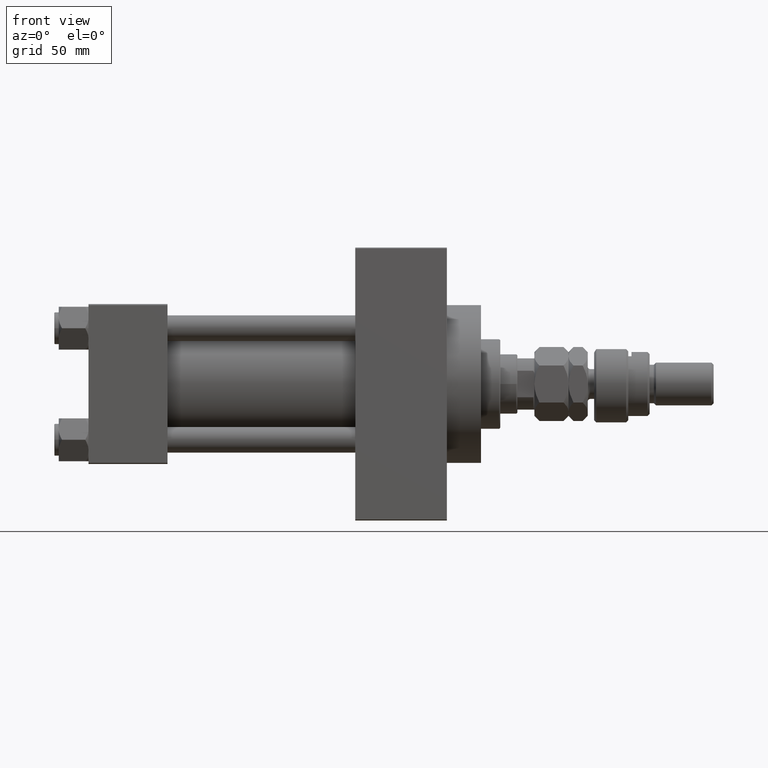
[diagram: clean part render]
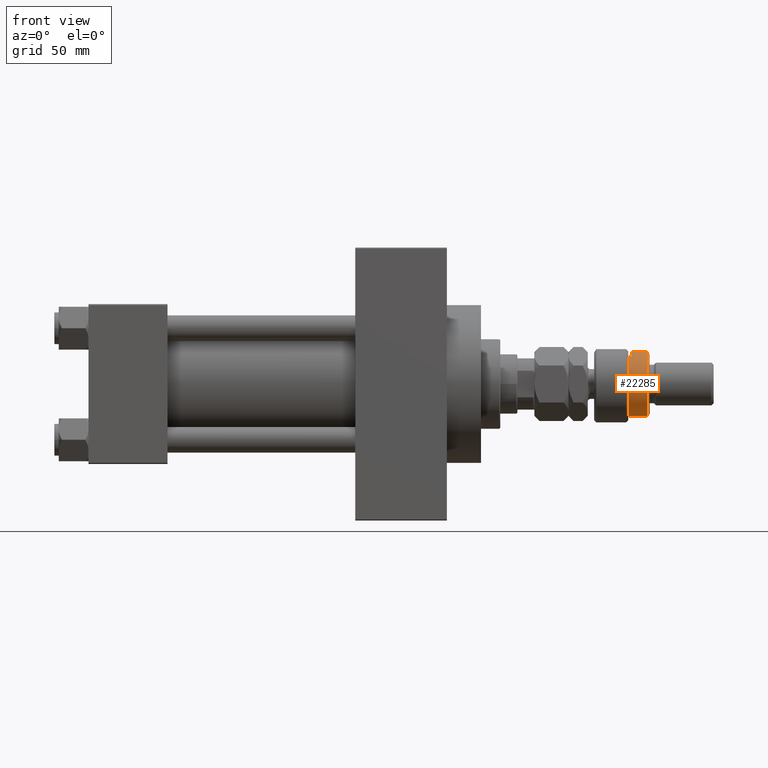
[diagram: same view with one face highlighted and labeled with its STEP entity id]
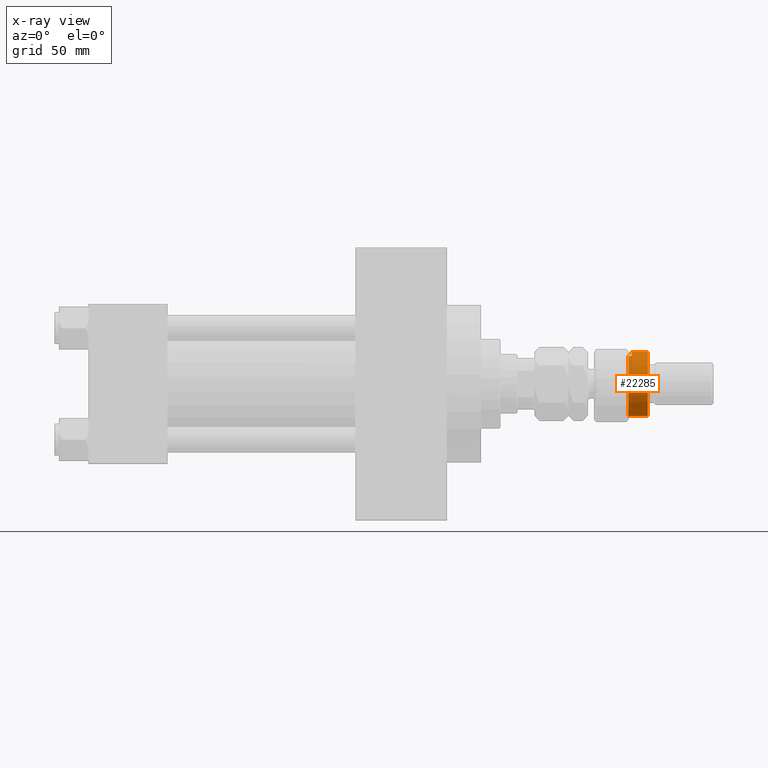
[diagram: x-ray of the same camera — body ghosted, the highlighted face saturated]
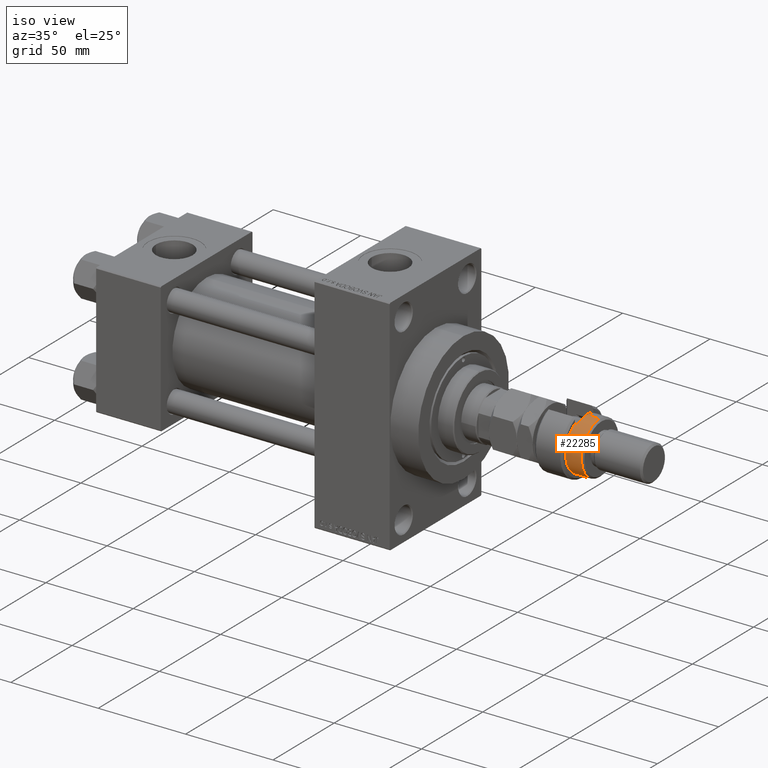
[diagram: same view with one face highlighted and labeled with its STEP entity id]
A machine part, front view. The second image highlights one B-rep face of the part: STEP entity #22285.
The next image is the same camera in x-ray: the body ghosted, the highlighted face saturated — about 0% of this face is hidden behind the body in this view.
A second angle (iso view) of the same face is appended — the face is thin or edge-on in the first view.
In plain terms, the highlighted cylindrical surface (edge-blend (fillet) strip) has radius 15 mm, axis along (-1, -0, 0).
Its self-contained STEP definition (entity closure, byte-faithful):
#2466 = DIRECTION ( 'NONE',  ( -0.000000000000000000, -0.000000000000000000, -1.000000000000000000 ) ) ;
#2936 = CIRCLE ( 'NONE', #9396, 15.00000000000000000 ) ;
#2995 = VECTOR ( 'NONE', #3976, 1000.000000000000000 ) ;
#3128 = EDGE_CURVE ( 'NONE', #3950, #18785, #36921, .T. ) ;
#3442 = CARTESIAN_POINT ( 'NONE',  ( -15.00000000000000000, 0.000000000000000000, 24.99999999999997868 ) ) ;
#3537 = ORIENTED_EDGE ( 'NONE', *, *, #24087, .T. ) ;
#3584 = CIRCLE ( 'NONE', #10868, 15.00000000000000000 ) ;
#3950 = VERTEX_POINT ( 'NONE', #13301 ) ;
#3976 = DIRECTION ( 'NONE',  ( -0.000000000000000000, -0.000000000000000000, -1.000000000000000000 ) ) ;
#4215 = CARTESIAN_POINT ( 'NONE',  ( 15.00000000000000000, 1.836970198721029589E-15, 26.00000000000000355 ) ) ;
#4494 = AXIS2_PLACEMENT_3D ( 'NONE', #26440, #41947, #5664 ) ;
#5664 = DIRECTION ( 'NONE',  ( -1.000000000000000000, 0.000000000000000000, 0.000000000000000000 ) ) ;
#6603 = CARTESIAN_POINT ( 'NONE',  ( -12.99038105676658006, -7.500000000000000000, 16.00000000000000000 ) ) ;
#7388 = VERTEX_POINT ( 'NONE', #17633 ) ;
#7809 = VERTEX_POINT ( 'NONE', #19819 ) ;
#8707 = EDGE_CURVE ( 'NONE', #7809, #7388, #11343, .T. ) ;
#9396 = AXIS2_PLACEMENT_3D ( 'NONE', #14855, #29601, #38227 ) ;
#10335 = CARTESIAN_POINT ( 'NONE',  ( -12.99038105676658006, -7.500000000000000000, 26.00000000000000355 ) ) ;
#10584 = ORIENTED_EDGE ( 'NONE', *, *, #46490, .T. ) ;
#10868 = AXIS2_PLACEMENT_3D ( 'NONE', #12828, #31891, #28328 ) ;
#11343 = LINE ( 'NONE', #4215, #2995 ) ;
#11500 = VECTOR ( 'NONE', #2466, 1000.000000000000000 ) ;
#12828 = CARTESIAN_POINT ( 'NONE',  ( 0.000000000000000000, 0.000000000000000000, 16.00000000000000000 ) ) ;
#13301 = CARTESIAN_POINT ( 'NONE',  ( -12.99038105676658006, -7.500000000000000000, 17.50000000000000000 ) ) ;
#13386 = ORIENTED_EDGE ( 'NONE', *, *, #3128, .F. ) ;
#14855 = CARTESIAN_POINT ( 'NONE',  ( 0.000000000000000000, 0.000000000000000000, 24.99999999999997868 ) ) ;
#15154 = DIRECTION ( 'NONE',  ( -1.000000000000000000, 0.000000000000000000, 0.000000000000000000 ) ) ;
#17501 = VERTEX_POINT ( 'NONE', #3442 ) ;
#17502 = ORIENTED_EDGE ( 'NONE', *, *, #8707, .F. ) ;
#17633 = CARTESIAN_POINT ( 'NONE',  ( 15.00000000000000000, 1.836970198721029589E-15, 16.00000000000000000 ) ) ;
#18484 = CYLINDRICAL_SURFACE ( 'NONE', #42426, 15.00000000000000000 ) ;
#18785 = VERTEX_POINT ( 'NONE', #23799 ) ;
#19819 = CARTESIAN_POINT ( 'NONE',  ( 15.00000000000000000, 1.836970198721029589E-15, 24.99999999999997868 ) ) ;
#20790 = LINE ( 'NONE', #32214, #38357 ) ;
#22285 = ADVANCED_FACE ( 'NONE', ( #49984 ), #18484, .T. ) ;
#23799 = CARTESIAN_POINT ( 'NONE',  ( -15.00000000000000000, 0.000000000000000000, 17.50000000000000000 ) ) ;
#24087 = EDGE_CURVE ( 'NONE', #37819, #7388, #3584, .T. ) ;
#24816 = LINE ( 'NONE', #10335, #11500 ) ;
#26440 = CARTESIAN_POINT ( 'NONE',  ( 0.000000000000000000, 0.000000000000000000, 17.50000000000000000 ) ) ;
#28328 = DIRECTION ( 'NONE',  ( 1.000000000000000000, 0.000000000000000000, 0.000000000000000000 ) ) ;
#28647 = DIRECTION ( 'NONE',  ( -0.000000000000000000, -0.000000000000000000, -1.000000000000000000 ) ) ;
#29306 = EDGE_CURVE ( 'NONE', #7809, #17501, #2936, .T. ) ;
#29601 = DIRECTION ( 'NONE',  ( 0.000000000000000000, 0.000000000000000000, -1.000000000000000000 ) ) ;
#31891 = DIRECTION ( 'NONE',  ( 0.000000000000000000, 0.000000000000000000, 1.000000000000000000 ) ) ;
#32214 = CARTESIAN_POINT ( 'NONE',  ( -15.00000000000000000, 0.000000000000000000, 26.00000000000000355 ) ) ;
#33831 = EDGE_LOOP ( 'NONE', ( #17502, #50034, #10584, #13386, #45963, #3537 ) ) ;
#36921 = CIRCLE ( 'NONE', #4494, 15.00000000000000000 ) ;
#37819 = VERTEX_POINT ( 'NONE', #6603 ) ;
#38227 = DIRECTION ( 'NONE',  ( 1.000000000000000000, 0.000000000000000000, 0.000000000000000000 ) ) ;
#38357 = VECTOR ( 'NONE', #28647, 1000.000000000000000 ) ;
#41012 = EDGE_CURVE ( 'NONE', #3950, #37819, #24816, .T. ) ;
#41947 = DIRECTION ( 'NONE',  ( 0.000000000000000000, 0.000000000000000000, -1.000000000000000000 ) ) ;
#42339 = DIRECTION ( 'NONE',  ( -0.000000000000000000, -0.000000000000000000, -1.000000000000000000 ) ) ;
#42426 = AXIS2_PLACEMENT_3D ( 'NONE', #45660, #42339, #15154 ) ;
#45660 = CARTESIAN_POINT ( 'NONE',  ( 0.000000000000000000, 0.000000000000000000, 26.00000000000000355 ) ) ;
#45963 = ORIENTED_EDGE ( 'NONE', *, *, #41012, .T. ) ;
#46490 = EDGE_CURVE ( 'NONE', #17501, #18785, #20790, .T. ) ;
#49984 = FACE_OUTER_BOUND ( 'NONE', #33831, .T. ) ;
#50034 = ORIENTED_EDGE ( 'NONE', *, *, #29306, .T. ) ;